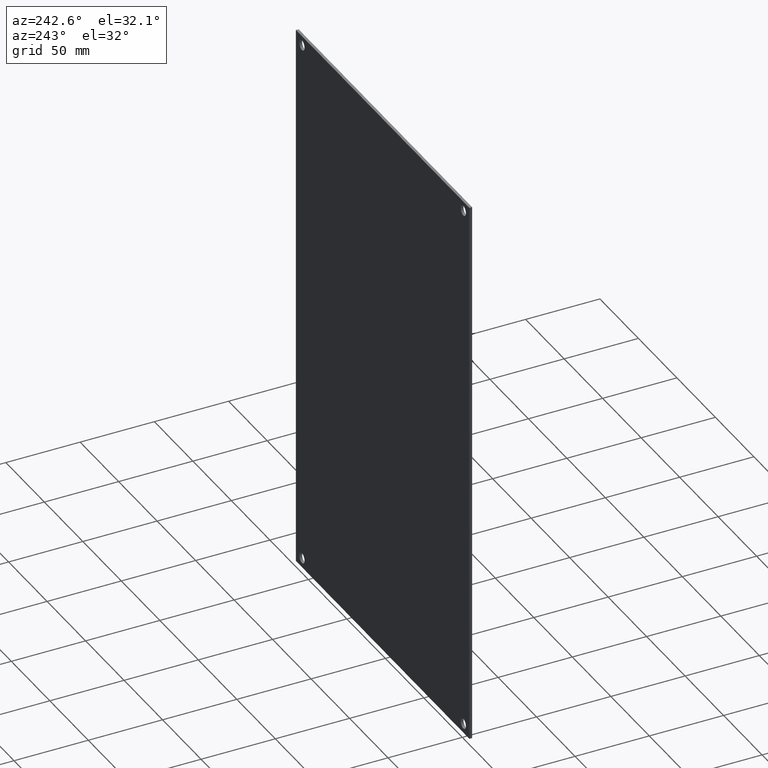
[diagram: clean part render]
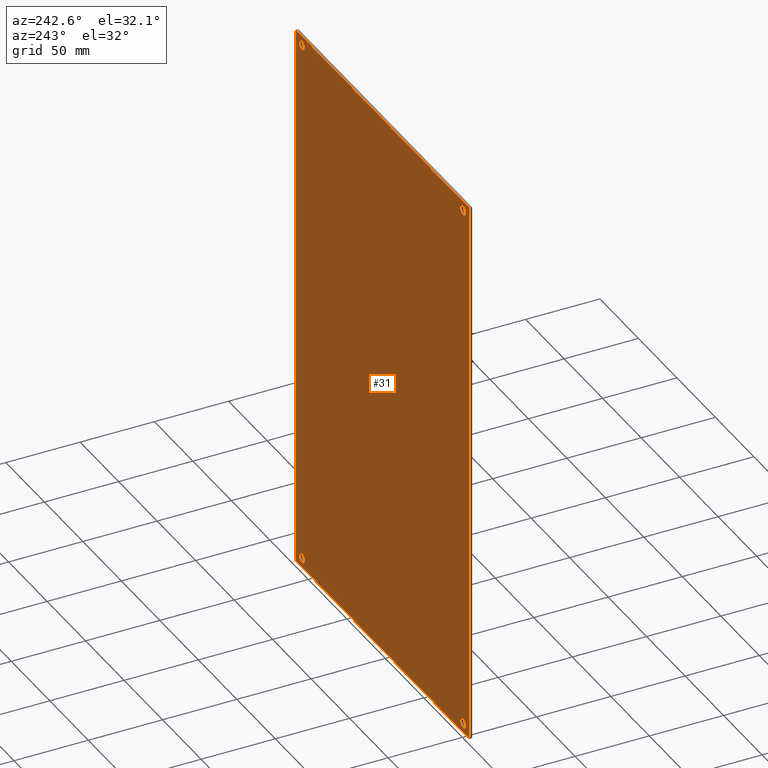
[diagram: same view with one face highlighted and labeled with its STEP entity id]
A machine part, auxiliary view. The second image highlights one B-rep face of the part: STEP entity #31.
In plain terms, the highlighted planar face has unit normal (0, -1, 0).
Its self-contained STEP definition (entity closure, byte-faithful):
#3 = EDGE_CURVE ( 'NONE', #502, #14, #254, .T. ) ;
#10 = AXIS2_PLACEMENT_3D ( 'NONE', #113, #460, #481 ) ;
#14 = VERTEX_POINT ( 'NONE', #380 ) ;
#16 = CARTESIAN_POINT ( 'NONE',  ( 4.437500000000000000, 0.07200000000000000844, 7.375000000000000000 ) ) ;
#19 = ORIENTED_EDGE ( 'NONE', *, *, #213, .F. ) ;
#21 = EDGE_CURVE ( 'NONE', #249, #249, #473, .T. ) ;
#31 = ADVANCED_FACE ( 'NONE', ( #353, #68, #127, #209, #85 ), #165, .F. ) ;
#33 = VERTEX_POINT ( 'NONE', #145 ) ;
#54 = EDGE_LOOP ( 'NONE', ( #295 ) ) ;
#68 = FACE_BOUND ( 'NONE', #155, .T. ) ;
#78 = CARTESIAN_POINT ( 'NONE',  ( 4.125000000000000000, 0.07200000000000075784, 7.125000000000000000 ) ) ;
#85 = FACE_BOUND ( 'NONE', #302, .T. ) ;
#86 = CARTESIAN_POINT ( 'NONE',  ( -4.437500000000000000, 0.07200000000000000844, -7.375000000000000000 ) ) ;
#89 = EDGE_CURVE ( 'NONE', #287, #275, #422, .T. ) ;
#101 = DIRECTION ( 'NONE',  ( 0.0000000000000000000, -1.000000000000000000, 0.0000000000000000000 ) ) ;
#104 = EDGE_CURVE ( 'NONE', #33, #33, #349, .T. ) ;
#106 = EDGE_LOOP ( 'NONE', ( #388 ) ) ;
#113 = CARTESIAN_POINT ( 'NONE',  ( -4.125000000000000000, 0.07200000000000075784, 7.125000000000000000 ) ) ;
#120 = ORIENTED_EDGE ( 'NONE', *, *, #132, .F. ) ;
#123 = VERTEX_POINT ( 'NONE', #268 ) ;
#127 = FACE_BOUND ( 'NONE', #54, .T. ) ;
#129 = ORIENTED_EDGE ( 'NONE', *, *, #3, .F. ) ;
#132 = EDGE_CURVE ( 'NONE', #275, #502, #514, .T. ) ;
#135 = CARTESIAN_POINT ( 'NONE',  ( 4.437500000000000000, 0.07200000000000000844, -7.375000000000000000 ) ) ;
#144 = ORIENTED_EDGE ( 'NONE', *, *, #104, .T. ) ;
#145 = CARTESIAN_POINT ( 'NONE',  ( 4.125000000000000000, 0.07200000000000075784, 7.257499999999999396 ) ) ;
#155 = EDGE_LOOP ( 'NONE', ( #436 ) ) ;
#163 = VECTOR ( 'NONE', #383, 39.37007874015748143 ) ;
#165 = PLANE ( 'NONE',  #453 ) ;
#184 = VERTEX_POINT ( 'NONE', #305 ) ;
#199 = EDGE_LOOP ( 'NONE', ( #129, #120, #220, #19 ) ) ;
#209 = FACE_BOUND ( 'NONE', #106, .T. ) ;
#213 = EDGE_CURVE ( 'NONE', #14, #287, #339, .T. ) ;
#220 = ORIENTED_EDGE ( 'NONE', *, *, #89, .F. ) ;
#233 = DIRECTION ( 'NONE',  ( 0.0000000000000000000, -1.000000000000000000, 0.0000000000000000000 ) ) ;
#236 = EDGE_CURVE ( 'NONE', #184, #184, #284, .T. ) ;
#237 = DIRECTION ( 'NONE',  ( -0.0000000000000000000, -0.0000000000000000000, -1.000000000000000000 ) ) ;
#243 = DIRECTION ( 'NONE',  ( 0.0000000000000000000, 0.0000000000000000000, 1.000000000000000000 ) ) ;
#247 = DIRECTION ( 'NONE',  ( 0.0000000000000000000, -0.0000000000000000000, -1.000000000000000000 ) ) ;
#248 = CARTESIAN_POINT ( 'NONE',  ( -4.125000000000000000, 0.07200000000000075784, -7.125000000000000000 ) ) ;
#249 = VERTEX_POINT ( 'NONE', #509 ) ;
#254 = LINE ( 'NONE', #416, #282 ) ;
#261 = VECTOR ( 'NONE', #237, 39.37007874015748143 ) ;
#265 = DIRECTION ( 'NONE',  ( 1.000000000000000000, -0.0000000000000000000, 0.0000000000000000000 ) ) ;
#268 = CARTESIAN_POINT ( 'NONE',  ( -4.125000000000000000, 0.07200000000000075784, -6.992500000000000604 ) ) ;
#269 = AXIS2_PLACEMENT_3D ( 'NONE', #248, #101, #290 ) ;
#275 = VERTEX_POINT ( 'NONE', #483 ) ;
#282 = VECTOR ( 'NONE', #455, 39.37007874015748143 ) ;
#284 = CIRCLE ( 'NONE', #329, 0.1324999999999997569 ) ;
#287 = VERTEX_POINT ( 'NONE', #86 ) ;
#289 = CARTESIAN_POINT ( 'NONE',  ( 4.125000000000000000, 0.07200000000000075784, -7.125000000000000000 ) ) ;
#290 = DIRECTION ( 'NONE',  ( 0.0000000000000000000, 0.0000000000000000000, 1.000000000000000000 ) ) ;
#295 = ORIENTED_EDGE ( 'NONE', *, *, #21, .T. ) ;
#297 = CARTESIAN_POINT ( 'NONE',  ( -4.437500000000000000, 0.07200000000000000844, -7.375000000000000000 ) ) ;
#299 = CIRCLE ( 'NONE', #269, 0.1324999999999997569 ) ;
#302 = EDGE_LOOP ( 'NONE', ( #144 ) ) ;
#305 = CARTESIAN_POINT ( 'NONE',  ( 4.125000000000000000, 0.07200000000000075784, -6.992500000000000604 ) ) ;
#322 = EDGE_CURVE ( 'NONE', #123, #123, #299, .T. ) ;
#327 = DIRECTION ( 'NONE',  ( 0.0000000000000000000, -1.000000000000000000, 0.0000000000000000000 ) ) ;
#329 = AXIS2_PLACEMENT_3D ( 'NONE', #289, #327, #243 ) ;
#339 = LINE ( 'NONE', #519, #261 ) ;
#349 = CIRCLE ( 'NONE', #522, 0.1324999999999997569 ) ;
#353 = FACE_OUTER_BOUND ( 'NONE', #199, .T. ) ;
#380 = CARTESIAN_POINT ( 'NONE',  ( -4.437500000000000000, 0.07200000000000000844, 7.375000000000000000 ) ) ;
#382 = VECTOR ( 'NONE', #265, 39.37007874015748143 ) ;
#383 = DIRECTION ( 'NONE',  ( -0.0000000000000000000, -0.0000000000000000000, 1.000000000000000000 ) ) ;
#388 = ORIENTED_EDGE ( 'NONE', *, *, #236, .T. ) ;
#416 = CARTESIAN_POINT ( 'NONE',  ( 4.437500000000000000, 0.07200000000000000844, 7.375000000000000000 ) ) ;
#422 = LINE ( 'NONE', #507, #382 ) ;
#436 = ORIENTED_EDGE ( 'NONE', *, *, #322, .T. ) ;
#453 = AXIS2_PLACEMENT_3D ( 'NONE', #297, #496, #247 ) ;
#455 = DIRECTION ( 'NONE',  ( -1.000000000000000000, -0.0000000000000000000, 0.0000000000000000000 ) ) ;
#460 = DIRECTION ( 'NONE',  ( 0.0000000000000000000, -1.000000000000000000, 0.0000000000000000000 ) ) ;
#473 = CIRCLE ( 'NONE', #10, 0.1324999999999997569 ) ;
#481 = DIRECTION ( 'NONE',  ( 0.0000000000000000000, 0.0000000000000000000, 1.000000000000000000 ) ) ;
#483 = CARTESIAN_POINT ( 'NONE',  ( 4.437500000000000000, 0.07200000000000000844, -7.375000000000000000 ) ) ;
#496 = DIRECTION ( 'NONE',  ( 0.0000000000000000000, -1.000000000000000000, 0.0000000000000000000 ) ) ;
#502 = VERTEX_POINT ( 'NONE', #16 ) ;
#507 = CARTESIAN_POINT ( 'NONE',  ( -4.437500000000000000, 0.07200000000000000844, -7.375000000000000000 ) ) ;
#509 = CARTESIAN_POINT ( 'NONE',  ( -4.125000000000000000, 0.07200000000000075784, 7.257499999999999396 ) ) ;
#514 = LINE ( 'NONE', #135, #163 ) ;
#519 = CARTESIAN_POINT ( 'NONE',  ( -4.437500000000000000, 0.07200000000000000844, 7.375000000000000000 ) ) ;
#522 = AXIS2_PLACEMENT_3D ( 'NONE', #78, #233, #525 ) ;
#525 = DIRECTION ( 'NONE',  ( 0.0000000000000000000, 0.0000000000000000000, 1.000000000000000000 ) ) ;